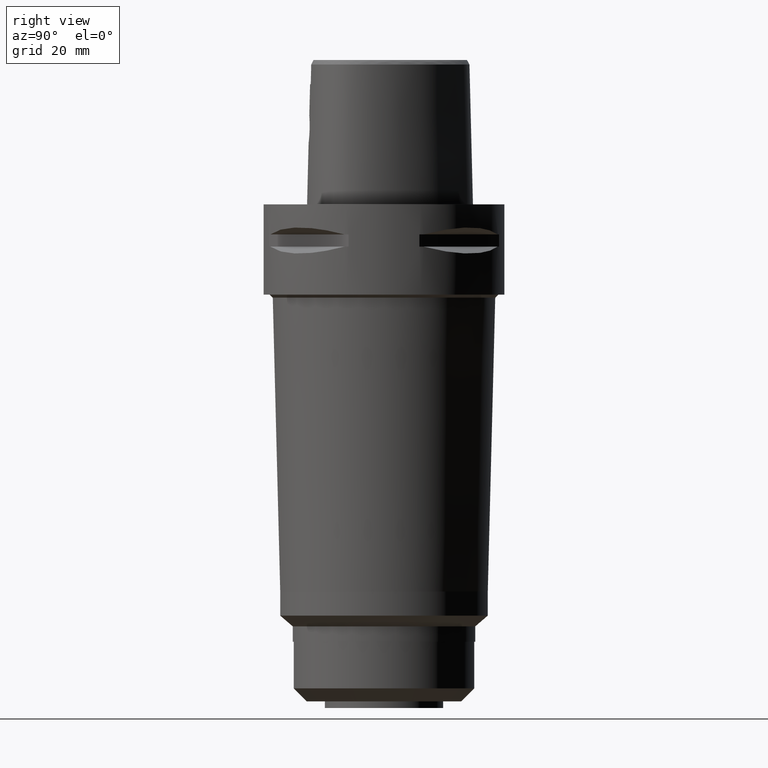
[diagram: clean part render]
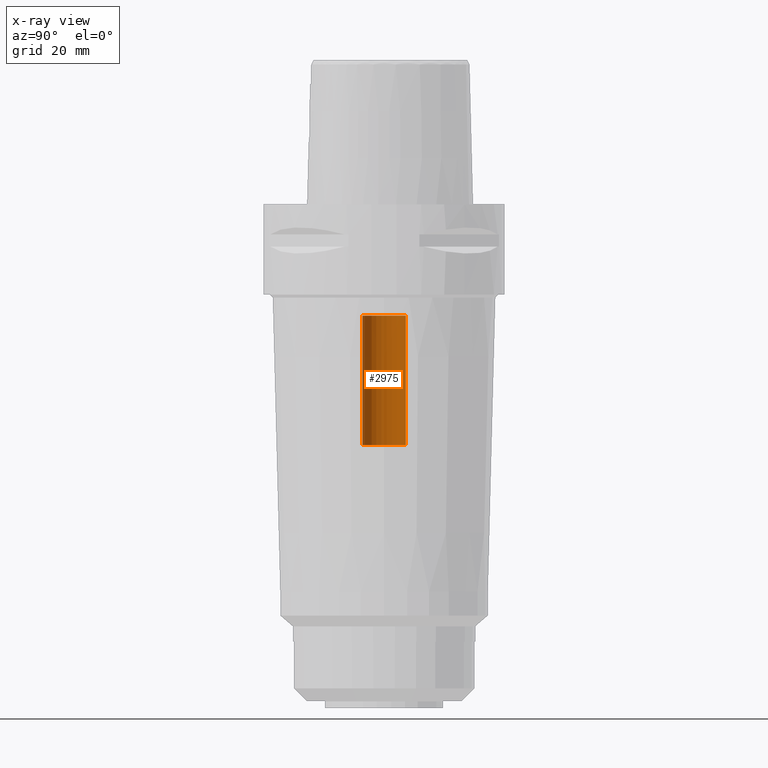
[diagram: x-ray — body ghosted, one internal face saturated and labeled with its STEP entity id]
A machine part, right view, then the same camera in x-ray: the body is ghosted and one INTERNAL B-rep face — a face not visible from any outside direction — is saturated and labeled: STEP entity #2975.
In plain terms, the highlighted cylindrical surface (edge-blend (fillet) strip) has radius 7.25 mm, axis along (0, 0, -1).
Its self-contained STEP definition (entity closure, byte-faithful):
#838=CARTESIAN_POINT('',(0.E0,0.E0,-8.E1));
#839=DIRECTION('',(0.E0,0.E0,-1.E0));
#840=DIRECTION('',(0.E0,-1.E0,0.E0));
#841=AXIS2_PLACEMENT_3D('',#838,#839,#840);
#854=DIRECTION('',(0.E0,0.E0,1.E0));
#855=VECTOR('',#854,4.3E1);
#856=CARTESIAN_POINT('',(0.E0,-7.25E0,-8.E1));
#857=LINE('',#856,#855);
#861=DIRECTION('',(0.E0,0.E0,1.E0));
#862=VECTOR('',#861,4.3E1);
#863=CARTESIAN_POINT('',(0.E0,7.25E0,-8.E1));
#864=LINE('',#863,#862);
#892=CARTESIAN_POINT('',(0.E0,0.E0,-3.7E1));
#893=DIRECTION('',(0.E0,0.E0,1.E0));
#894=DIRECTION('',(0.E0,1.E0,0.E0));
#895=AXIS2_PLACEMENT_3D('',#892,#893,#894);
#1727=CARTESIAN_POINT('',(0.E0,-7.25E0,-8.E1));
#1728=CARTESIAN_POINT('',(0.E0,7.25E0,-8.E1));
#1729=VERTEX_POINT('',#1727);
#1730=VERTEX_POINT('',#1728);
#1731=CARTESIAN_POINT('',(0.E0,7.25E0,-3.7E1));
#1732=VERTEX_POINT('',#1731);
#1733=CARTESIAN_POINT('',(0.E0,-7.25E0,-3.7E1));
#1734=VERTEX_POINT('',#1733);
#2961=CARTESIAN_POINT('',(0.E0,0.E0,8.37E0));
#2962=DIRECTION('',(0.E0,0.E0,-1.E0));
#2963=DIRECTION('',(0.E0,-1.E0,0.E0));
#2964=AXIS2_PLACEMENT_3D('',#2961,#2962,#2963);
#2965=CYLINDRICAL_SURFACE('',#2964,7.25E0);
#2967=ORIENTED_EDGE('',*,*,#2966,.F.);
#2968=ORIENTED_EDGE('',*,*,#2954,.F.);
#2970=ORIENTED_EDGE('',*,*,#2969,.T.);
#2972=ORIENTED_EDGE('',*,*,#2971,.F.);
#2973=EDGE_LOOP('',(#2967,#2968,#2970,#2972));
#2974=FACE_OUTER_BOUND('',#2973,.F.);
#842=CIRCLE('',#841,7.25E0);
#896=CIRCLE('',#895,7.25E0);
#2954=EDGE_CURVE('',#1729,#1730,#842,.T.);
#2966=EDGE_CURVE('',#1730,#1732,#864,.T.);
#2969=EDGE_CURVE('',#1729,#1734,#857,.T.);
#2971=EDGE_CURVE('',#1732,#1734,#896,.T.);
#2975=ADVANCED_FACE('',(#2974),#2965,.F.);